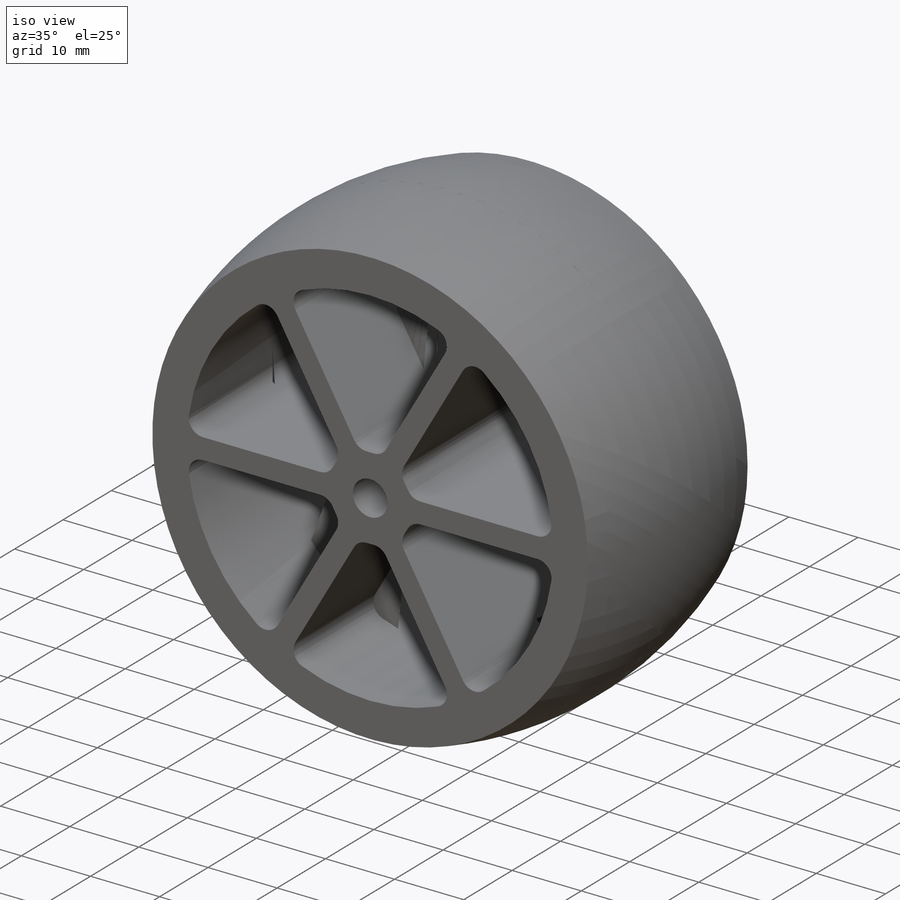
[diagram: iso view]
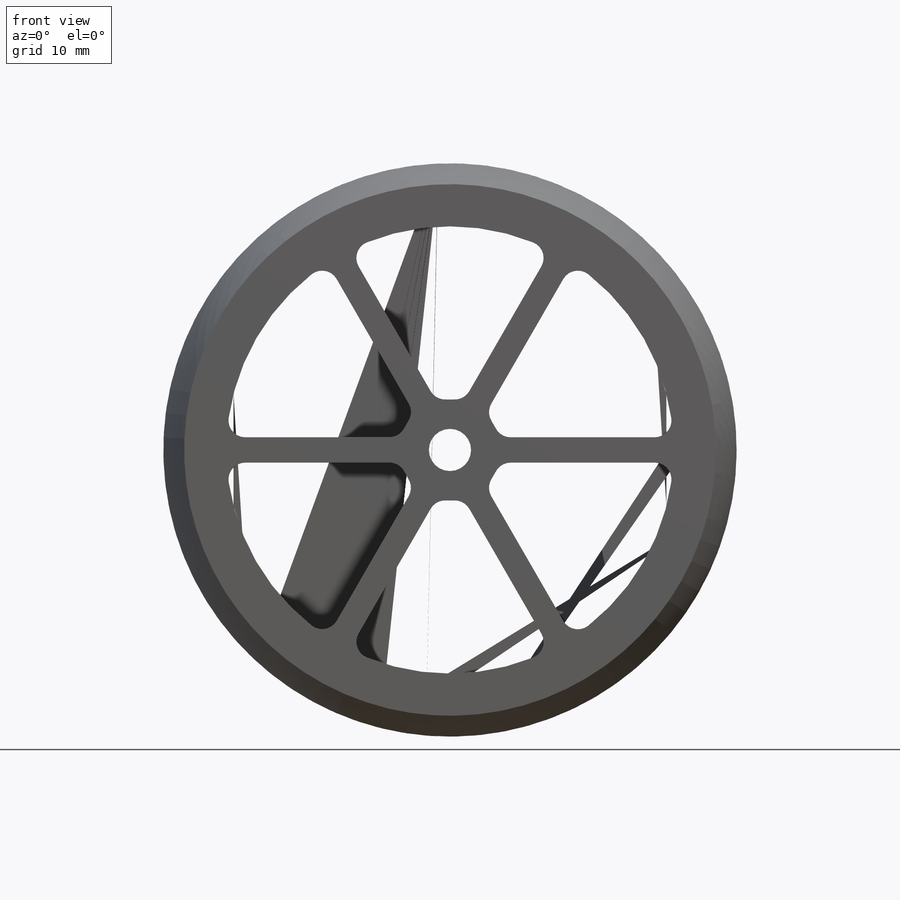
[diagram: front view]
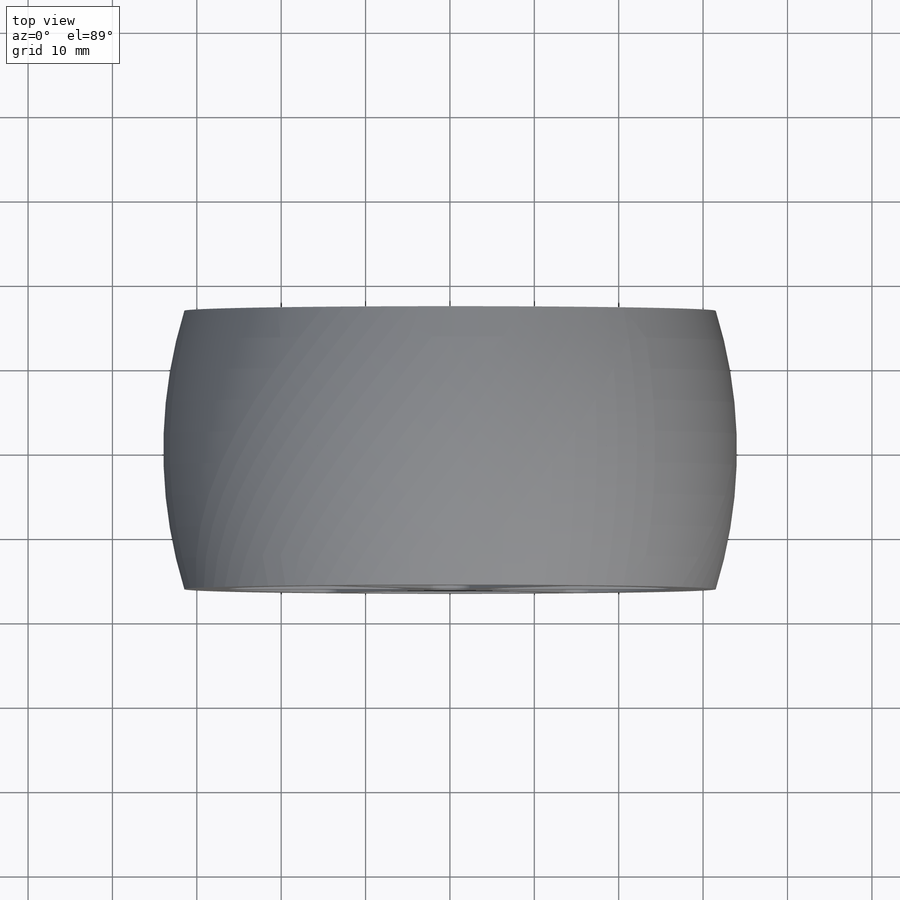
[diagram: top view]
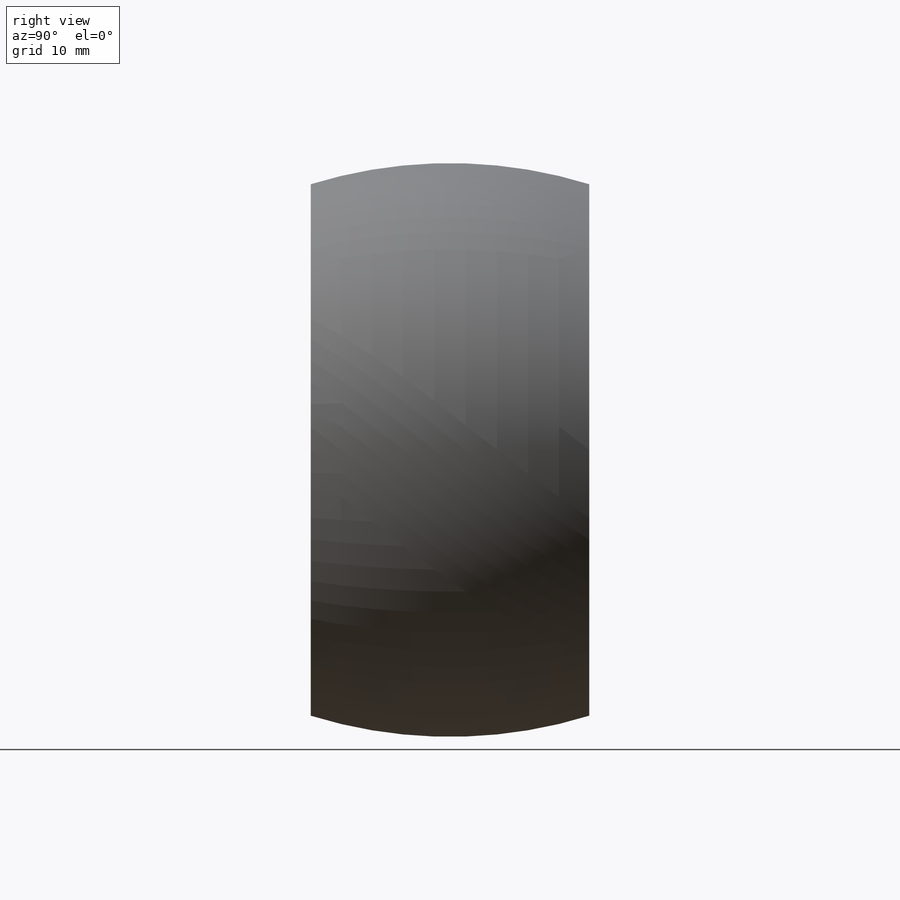
[diagram: right view]
SOLIDWORKS PART (.sldprt)
format: sldprt  version: not decoded by parser v0  size: 285,184 bytes
history: native  units: mm
features: plane x3, sketch x3, cut_extrude x2, material x1, revolve x1, fillet x1, pattern_circular x1 (+9 scaffold rows collapsed)
feature tree (21):
  scaffold x9  (default folders/planes/origin — collapsed)
  material  "ABS"
  plane  "Ebene vorne"
  plane  "Ebene oben"
  plane  "Ebene rechts"
  sketch  "Skizze4"  dims[c1.D1=65.0mm c1.D2=~37.805837mm c2.D2=90.0deg c3.D2=70.0mm c3.D3=33.0mm c4.D2=2.5mm c4.D1=68.0mm]
  revolve  "Rotation1"  Angle=360deg
  sketch  "Skizze5"  dims[c1.D2=6.0mm c1.D3=~27.667414mm c1.D1=~25.866735mm c2.D1=60.0deg c2.D3=5.0mm c2.D4=3.0mm]
  cut_extrude  "Schnitt-Linear austragen1"  [1 undecoded]
  fillet  "Verrundung1"  Radius=2mm
  pattern_circular  "Kreismuster1"  Count=6 Angle=360deg
  sketch  "Skizze7"  dims[D1=5.0mm]
  cut_extrude  "Schnitt-Linear austragen3"  [1 undecoded]
decode coverage: 6 of 8 modeling features carry decoded parameters
note: ~ marks probable driven/reference dimensions
note: 2 parameter values undecoded
note: suppression state not decoded; provenance and decode notes live in map.json
